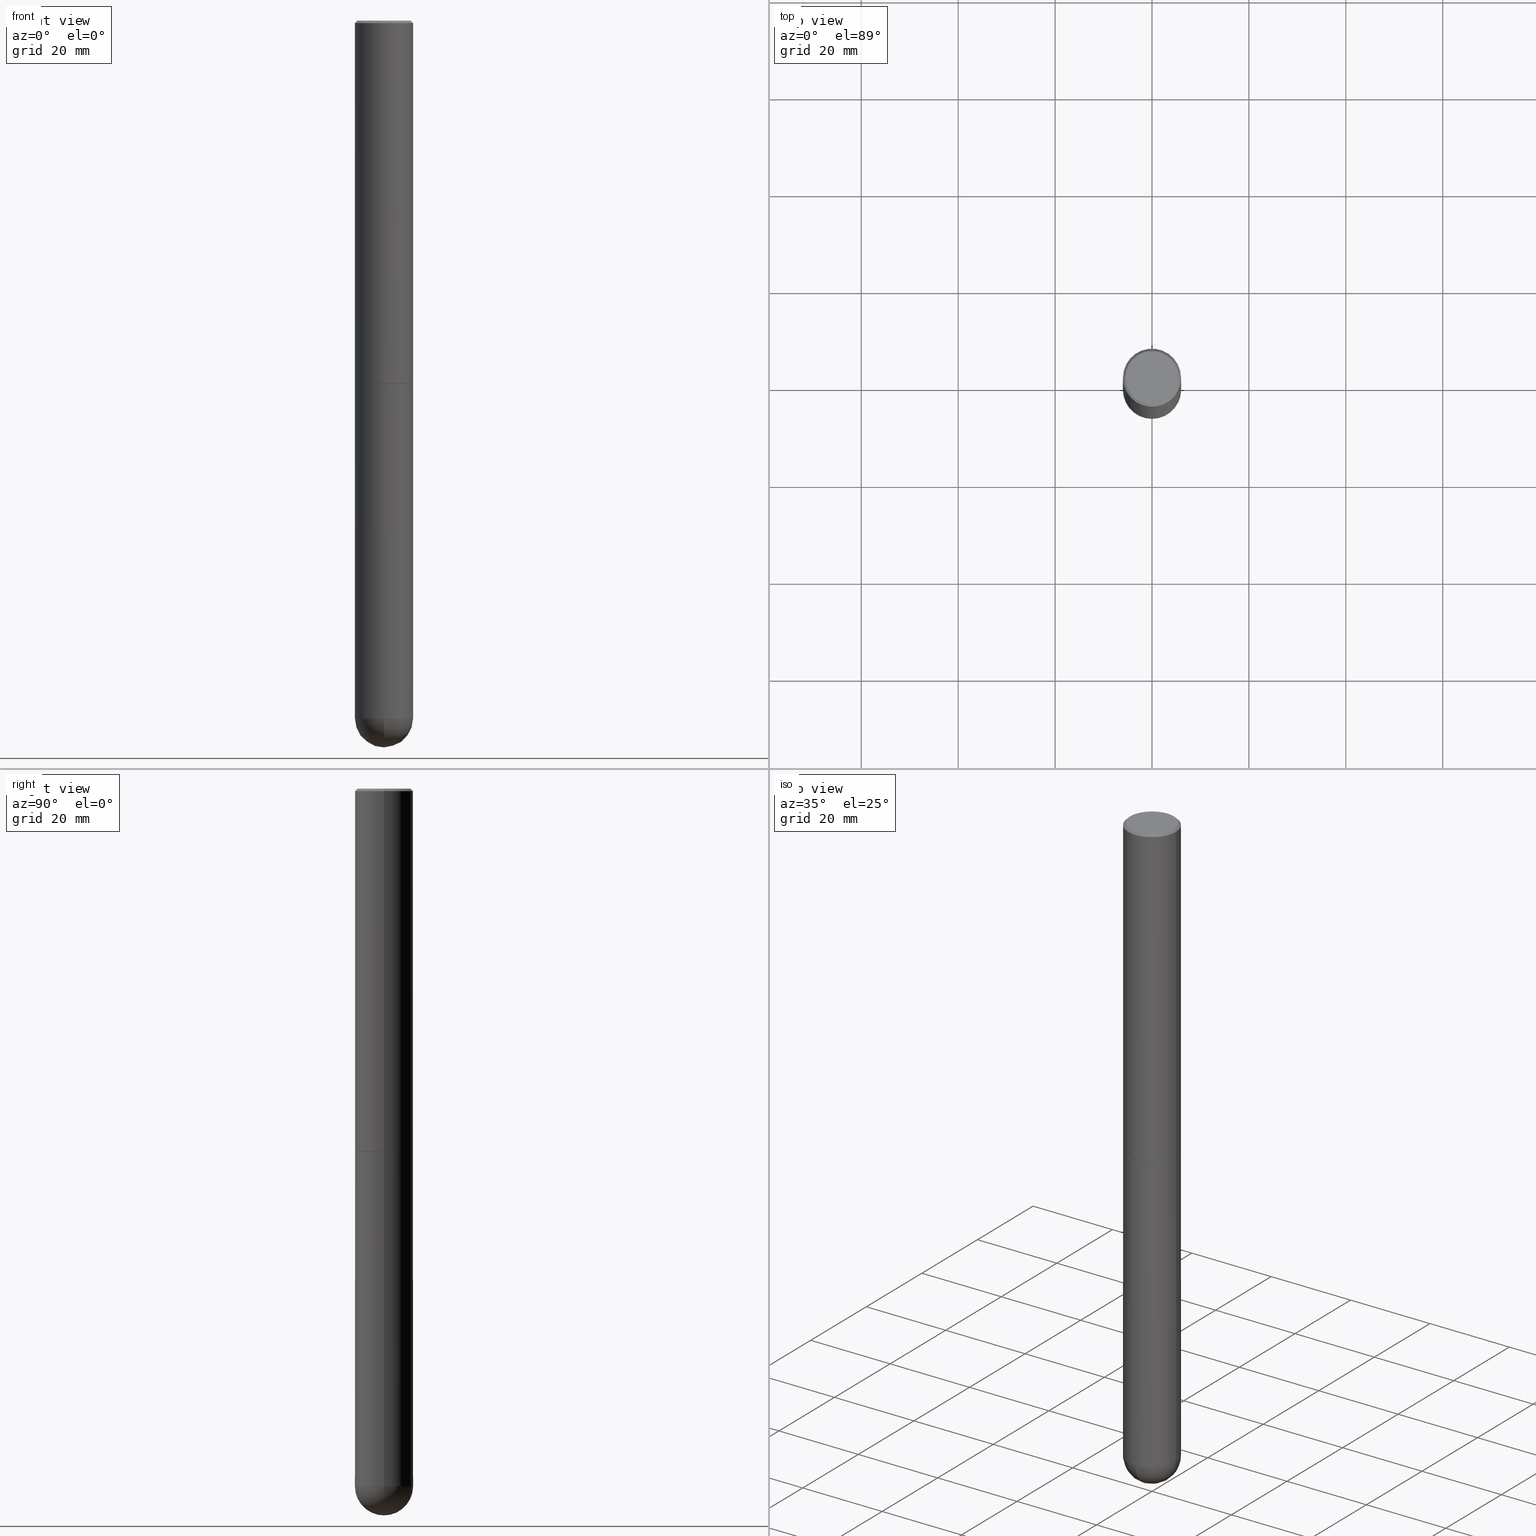
[diagram: canonical four-view strip — front | top / right | iso, engineering-drawing reading convention]
A machine part, canonical four-view strip (front | top / right | iso — engineering-drawing reading convention). The complete STEP part file that produces these views, byte-faithful:
ISO-10303-21;
HEADER;
FILE_DESCRIPTION (( 'STEP AP203' ),
    '1' );
FILE_NAME ('49603.STEP',
    '2024-04-10T12:29:52',
    ( '' ),
    ( '' ),
    'SwSTEP 2.0',
    'SolidWorks 2023',
    '' );
FILE_SCHEMA (( 'CONFIG_CONTROL_DESIGN' ));
ENDSEC;

DATA;
#1 = CC_DESIGN_PERSON_AND_ORGANIZATION_ASSIGNMENT ( #290, #282, ( #22 ) ) ;
#2 = VERTEX_POINT ( 'NONE', #254 ) ;
#3 = AXIS2_PLACEMENT_3D ( 'NONE', #136, #263, #313 ) ;
#4 = FACE_OUTER_BOUND ( 'NONE', #307, .T. ) ;
#5 = DIRECTION ( 'NONE',  ( -2.445468806185136597E-29, 3.491481338843145583E-15, 1.000000000000000000 ) ) ;
#6 = ORIENTED_EDGE ( 'NONE', *, *, #72, .F. ) ;
#7 = CARTESIAN_POINT ( 'NONE',  ( 1.353297652499150981E-28, -2.026843752244349558E-14, -5.669299999999999784 ) ) ;
#8 = DIRECTION ( 'NONE',  ( 2.438088387897960049E-29, -3.491481338843145188E-15, -1.000000000000000000 ) ) ;
#9 = CARTESIAN_POINT ( 'NONE',  ( 1.353297652499150981E-28, -2.026843752244349558E-14, -5.669299999999999784 ) ) ;
#10 = CARTESIAN_POINT ( 'NONE',  ( 0.2362000000000003264, -1.195518125233281169E-14, -2.951700000000000212 ) ) ;
#11 = ORIENTED_EDGE ( 'NONE', *, *, #112, .F. ) ;
#12 = ORIENTED_EDGE ( 'NONE', *, *, #366, .T. ) ;
#13 = DIRECTION ( 'NONE',  ( -1.000000000000000000, 7.105427357601001070E-15, -4.926315508542082329E-29 ) ) ;
#14 = CIRCLE ( 'NONE', #382, 0.2361999999999999933 ) ;
#15 = CARTESIAN_POINT ( 'NONE',  ( -0.2361999999999999933, 1.678301941865356591E-15, -1.161852468318208757E-29 ) ) ;
#16 = ORIENTED_EDGE ( 'NONE', *, *, #42, .T. ) ;
#17 = EDGE_CURVE ( 'NONE', #97, #104, #317, .T. ) ;
#18 = DIRECTION ( 'NONE',  ( -2.445468806185136597E-29, 3.491481338843145583E-15, 1.000000000000000000 ) ) ;
#19 = EDGE_LOOP ( 'NONE', ( #152, #25 ) ) ;
#20 = CARTESIAN_POINT ( 'NONE',  ( 0.000000000000000000, 0.000000000000000000, 0.000000000000000000 ) ) ;
#21 = CC_DESIGN_SECURITY_CLASSIFICATION ( #81, ( #22 ) ) ;
#22 = PRODUCT_DEFINITION_FORMATION_WITH_SPECIFIED_SOURCE ( 'ANY', '', #146, .NOT_KNOWN. ) ;
#23 = CALENDAR_DATE ( 2024, 10, 4 ) ;
#24 = DATE_AND_TIME ( #354, #365 ) ;
#25 = ORIENTED_EDGE ( 'NONE', *, *, #53, .T. ) ;
#26 = DATE_TIME_ROLE ( 'classification_date' ) ;
#27 = EDGE_LOOP ( 'NONE', ( #257, #231, #75, #253 ) ) ;
#28 = CIRCLE ( 'NONE', #342, 0.2362000000000002709 ) ;
#29 = EDGE_CURVE ( 'NONE', #148, #220, #126, .T. ) ;
#30 = PERSON_AND_ORGANIZATION ( #258, #260 ) ;
#31 = ADVANCED_FACE ( 'NONE', ( #386 ), #169, .T. ) ;
#32 = MECHANICAL_CONTEXT ( 'NONE', #217, 'mechanical' ) ;
#33 = ORIENTED_EDGE ( 'NONE', *, *, #296, .F. ) ;
#34 = DIRECTION ( 'NONE',  ( 0.7071067811867406405, -2.468850131084279700E-15, 0.7071067811863543939 ) ) ;
#35 = CARTESIAN_POINT ( 'NONE',  ( 0.2361999999999999933, -1.670115183622230141E-14, -5.669299999999999784 ) ) ;
#36 = AXIS2_PLACEMENT_3D ( 'NONE', #278, #272, #274 ) ;
#37 = DIRECTION ( 'NONE',  ( 1.000000000000000000, -6.982962677686268288E-15, 0.000000000000000000 ) ) ;
#38 = AXIS2_PLACEMENT_3D ( 'NONE', #49, #400, #147 ) ;
#39 = CARTESIAN_POINT ( 'NONE',  ( 1.412069577088764835E-28, -2.107866233598031943E-14, -5.905499999999999972 ) ) ;
#40 = FACE_OUTER_BOUND ( 'NONE', #293, .T. ) ;
#41 = DIRECTION ( 'NONE',  ( -2.438088387897960049E-29, 3.491481338843145188E-15, 1.000000000000000000 ) ) ;
#42 = EDGE_CURVE ( 'NONE', #188, #214, #302, .T. ) ;
#43 = CIRCLE ( 'NONE', #276, 0.2162000000000001421 ) ;
#44 = VECTOR ( 'NONE', #222, 39.37007874015748143 ) ;
#45 = DIRECTION ( 'NONE',  ( -1.000000000000000000, 6.982962677686265922E-15, -4.883557194083112901E-29 ) ) ;
#46 = EDGE_CURVE ( 'NONE', #220, #135, #310, .T. ) ;
#47 = LINE ( 'NONE', #109, #105 ) ;
#48 = ORIENTED_EDGE ( 'NONE', *, *, #366, .F. ) ;
#49 = CARTESIAN_POINT ( 'NONE',  ( 7.220735744022852519E-29, -1.030929694920215502E-14, -2.952700000000000102 ) ) ;
#50 = AXIS2_PLACEMENT_3D ( 'NONE', #7, #45, #166 ) ;
#51 = LINE ( 'NONE', #395, #322 ) ;
#52 = AXIS2_PLACEMENT_3D ( 'NONE', #163, #68, #193 ) ;
#53 = EDGE_CURVE ( 'NONE', #304, #371, #43, .T. ) ;
#54 = VERTEX_POINT ( 'NONE', #312 ) ;
#55 = CYLINDRICAL_SURFACE ( 'NONE', #249, 0.2362000000000001598 ) ;
#56 = DIRECTION ( 'NONE',  ( -0.7071067811865472397, 2.468850131082253905E-15, -0.7071067811865477948 ) ) ;
#57 = PERSON_AND_ORGANIZATION ( #258, #260 ) ;
#58 = ORIENTED_EDGE ( 'NONE', *, *, #296, .T. ) ;
#59 = CALENDAR_DATE ( 2024, 10, 4 ) ;
#60 = ORIENTED_EDGE ( 'NONE', *, *, #334, .T. ) ;
#61 = EDGE_CURVE ( 'NONE', #157, #2, #229, .T. ) ;
#62 = LOCAL_TIME ( 8, 29, 52.00000000000000000, #349 ) ;
#63 = APPLICATION_PROTOCOL_DEFINITION ( 'international standard', 'config_control_design', 1994, #226 ) ;
#64 = CARTESIAN_POINT ( 'NONE',  ( 7.220735744022852519E-29, -1.030929694920215502E-14, -2.952700000000000102 ) ) ;
#65 = ADVANCED_FACE ( 'NONE', ( #406 ), #244, .T. ) ;
#66 = DIRECTION ( 'NONE',  ( 0.7071067811865472397, -7.319954787623254468E-15, -0.7071067811865477948 ) ) ;
#67 = CARTESIAN_POINT ( 'NONE',  ( 7.220735744022852519E-29, -1.030929694920215502E-14, -2.952700000000000102 ) ) ;
#68 = DIRECTION ( 'NONE',  ( -2.445468806185136597E-29, 3.491481338843145583E-15, 1.000000000000000000 ) ) ;
#69 = ORIENTED_EDGE ( 'NONE', *, *, #172, .T. ) ;
#70 = MANIFOLD_SOLID_BREP ( 'Body-Move/Copy2[1]', #329 ) ;
#71 = DIRECTION ( 'NONE',  ( 1.000000000000000000, -6.982962677686265133E-15, 0.000000000000000000 ) ) ;
#72 = EDGE_CURVE ( 'NONE', #54, #148, #396, .T. ) ;
#73 = CARTESIAN_POINT ( 'NONE',  ( -0.2162000000000001421, 1.544631344304202170E-15, -1.835460370743283315E-16 ) ) ;
#74 = CC_DESIGN_APPROVAL ( #264, ( #81 ) ) ;
#75 = ORIENTED_EDGE ( 'NONE', *, *, #98, .F. ) ;
#76 = DIRECTION ( 'NONE',  ( -2.445468806185136597E-29, 3.491481338843145583E-15, 1.000000000000000000 ) ) ;
#77 = ORIENTED_EDGE ( 'NONE', *, *, #234, .F. ) ;
#78 = CARTESIAN_POINT ( 'NONE',  ( -0.2361999999999999933, -1.337347410988744218E-14, -2.952700000000000102 ) ) ;
#79 = LINE ( 'NONE', #15, #80 ) ;
#80 = VECTOR ( 'NONE', #364, 39.37007874015748143 ) ;
#81 = SECURITY_CLASSIFICATION ( '', '', #153 ) ;
#82 = EDGE_LOOP ( 'NONE', ( #77, #6 ) ) ;
#83 = DIRECTION ( 'NONE',  ( -2.445468806185136597E-29, 3.491481338843145583E-15, 1.000000000000000000 ) ) ;
#84 =( LENGTH_UNIT ( ) NAMED_UNIT ( * ) SI_UNIT ( $, .METRE. ) );
#85 = CARTESIAN_POINT ( 'NONE',  ( 0.000000000000000000, 0.000000000000000000, 0.000000000000000000 ) ) ;
#86 = VERTEX_POINT ( 'NONE', #39 ) ;
#87 = CONICAL_SURFACE ( 'NONE', #111, 0.2361999999999999933, 0.7853981633974479459 ) ;
#88 = APPROVAL_DATE_TIME ( #24, #149 ) ;
#89 = PERSON_AND_ORGANIZATION ( #258, #260 ) ;
#90 = CC_DESIGN_PERSON_AND_ORGANIZATION_ASSIGNMENT ( #284, #408, ( #81 ) ) ;
#91 = ORIENTED_EDGE ( 'NONE', *, *, #385, .F. ) ;
#92 = PERSON_AND_ORGANIZATION_ROLE ( 'design_owner' ) ;
#93 = CONICAL_SURFACE ( 'NONE', #192, 0.2361999999999999933, 0.7853981633974479459 ) ;
#94 = ADVANCED_FACE ( 'NONE', ( #40 ), #331, .T. ) ;
#95 = CARTESIAN_POINT ( 'NONE',  ( 4.890937612370285420E-31, -6.982962677686308865E-17, -0.02000000000000005246 ) ) ;
#96 = LINE ( 'NONE', #357, #44 ) ;
#97 = VERTEX_POINT ( 'NONE', #335 ) ;
#98 = EDGE_CURVE ( 'NONE', #214, #188, #117, .T. ) ;
#99 = DIRECTION ( 'NONE',  ( -2.445468806185136597E-29, 3.491481338843145583E-15, 1.000000000000000000 ) ) ;
#100 = PLANE ( 'NONE',  #205 ) ;
#101 = CC_DESIGN_DATE_AND_TIME_ASSIGNMENT ( #291, #116, ( #162 ) ) ;
#102 = CARTESIAN_POINT ( 'NONE',  ( 4.488561081641443999E-45, -6.408475632635922003E-31, -1.835460370743176573E-16 ) ) ;
#103 = CARTESIAN_POINT ( 'NONE',  ( 0.000000000000000000, 0.000000000000000000, 0.000000000000000000 ) ) ;
#104 = VERTEX_POINT ( 'NONE', #356 ) ;
#105 = VECTOR ( 'NONE', #309, 39.37007874015748143 ) ;
#106 = CARTESIAN_POINT ( 'NONE',  ( 4.890937612370285420E-31, -6.982962677686308865E-17, -0.02000000000000005246 ) ) ;
#107 = LINE ( 'NONE', #203, #224 ) ;
#108 = ORIENTED_EDGE ( 'NONE', *, *, #98, .T. ) ;
#109 = CARTESIAN_POINT ( 'NONE',  ( -0.2362000000000001598, 1.678301941865357775E-15, -1.161852468318209598E-29 ) ) ;
#110 = DIRECTION ( 'NONE',  ( -2.445468806185136877E-29, 3.491481338843145188E-15, 1.000000000000000000 ) ) ;
#111 = AXIS2_PLACEMENT_3D ( 'NONE', #344, #179, #341 ) ;
#112 = EDGE_CURVE ( 'NONE', #304, #214, #167, .T. ) ;
#113 = DATE_AND_TIME ( #59, #132 ) ;
#114 = ADVANCED_FACE ( 'NONE', ( #230 ), #387, .T. ) ;
#115 = COORDINATED_UNIVERSAL_TIME_OFFSET ( 5, 0, .BEHIND. ) ;
#116 = DATE_TIME_ROLE ( 'creation_date' ) ;
#117 = CIRCLE ( 'NONE', #359, 0.2361999999999999933 ) ;
#118 = CIRCLE ( 'NONE', #176, 0.2362000000000002709 ) ;
#119 = ADVANCED_FACE ( 'NONE', ( #388 ), #100, .F. ) ;
#120 = APPROVAL_ROLE ( '' ) ;
#121 = DIRECTION ( 'NONE',  ( -1.000000000000000000, 6.982962677686265922E-15, -4.883557194083112901E-29 ) ) ;
#122 = APPROVAL_DATE_TIME ( #151, #289 ) ;
#123 = ORIENTED_EDGE ( 'NONE', *, *, #334, .F. ) ;
#124 = VECTOR ( 'NONE', #281, 39.37007874015748143 ) ;
#125 = CIRCLE ( 'NONE', #285, 0.2361999999999999933 ) ;
#126 = LINE ( 'NONE', #381, #241 ) ;
#127 = DIRECTION ( 'NONE',  ( -1.000000000000000000, 6.982962677686265922E-15, -4.876176775795935793E-29 ) ) ;
#128 = DIRECTION ( 'NONE',  ( 1.000000000000000000, -6.982962677686265922E-15, 4.876176775795935793E-29 ) ) ;
#129 = ORIENTED_EDGE ( 'NONE', *, *, #17, .F. ) ;
#130 = DIRECTION ( 'NONE',  ( -2.445468806185136597E-29, 3.491481338843145583E-15, 1.000000000000000000 ) ) ;
#131 = AXIS2_PLACEMENT_3D ( 'NONE', #85, #245, #211 ) ;
#132 = LOCAL_TIME ( 8, 29, 52.00000000000000000, #376 ) ;
#133 = ADVANCED_FACE ( 'NONE', ( #390 ), #191, .F. ) ;
#134 = CARTESIAN_POINT ( 'NONE',  ( 0.2361999999999999933, -1.690279253850498771E-15, -0.02000000000000005246 ) ) ;
#135 = VERTEX_POINT ( 'NONE', #297 ) ;
#136 = CARTESIAN_POINT ( 'NONE',  ( 7.220735744022852519E-29, -1.030929694920215502E-14, -2.952700000000000102 ) ) ;
#137 = ORIENTED_EDGE ( 'NONE', *, *, #305, .T. ) ;
#138 = DIRECTION ( 'NONE',  ( -7.105427357601001070E-15, -1.000000000000000000, 0.000000000000000000 ) ) ;
#139 = EDGE_CURVE ( 'NONE', #292, #2, #125, .T. ) ;
#140 = EDGE_LOOP ( 'NONE', ( #11, #91, #283, #16 ) ) ;
#141 = AXIS2_PLACEMENT_3D ( 'NONE', #9, #121, #392 ) ;
#142 = CIRCLE ( 'NONE', #336, 0.2361999999999999933 ) ;
#143 = DIRECTION ( 'NONE',  ( -2.445468806185136597E-29, 3.491481338843145583E-15, 1.000000000000000000 ) ) ;
#144 = ORIENTED_EDGE ( 'NONE', *, *, #219, .T. ) ;
#145 = CARTESIAN_POINT ( 'NONE',  ( 0.000000000000000000, 0.000000000000000000, 0.000000000000000000 ) ) ;
#146 = PRODUCT ( '49603', '49603', '', ( #32 ) ) ;
#147 = DIRECTION ( 'NONE',  ( 1.000000000000000000, -6.982962677686268288E-15, 0.000000000000000000 ) ) ;
#148 = VERTEX_POINT ( 'NONE', #221 ) ;
#149 = APPROVAL ( #350, 'UNSPECIFIED' ) ;
#150 = DIRECTION ( 'NONE',  ( -2.445468806185136597E-29, 3.491481338843145583E-15, 1.000000000000000000 ) ) ;
#151 = DATE_AND_TIME ( #23, #62 ) ;
#152 = ORIENTED_EDGE ( 'NONE', *, *, #385, .T. ) ;
#153 = SECURITY_CLASSIFICATION_LEVEL ( 'unclassified' ) ;
#154 = PERSON_AND_ORGANIZATION ( #258, #260 ) ;
#155 = CLOSED_SHELL ( 'NONE', ( #373, #332, #315, #280, #94, #31, #119, #207 ) ) ;
#156 = AXIS2_PLACEMENT_3D ( 'NONE', #314, #340, #232 ) ;
#157 = VERTEX_POINT ( 'NONE', #35 ) ;
#158 = EDGE_CURVE ( 'NONE', #54, #135, #96, .T. ) ;
#159 = ORIENTED_EDGE ( 'NONE', *, *, #158, .F. ) ;
#160 = CARTESIAN_POINT ( 'NONE',  ( 1.386409630290539494E-28, -1.979425515430344370E-14, -5.669299999999999784 ) ) ;
#161 = EDGE_LOOP ( 'NONE', ( #202, #190, #180, #403 ) ) ;
#162 = PRODUCT_DEFINITION ( 'UNKNOWN', '', #22, #299 ) ;
#163 = CARTESIAN_POINT ( 'NONE',  ( 1.386409630290539494E-28, -1.979425515430344370E-14, -5.669299999999999784 ) ) ;
#164 = AXIS2_PLACEMENT_3D ( 'NONE', #243, #83, #209 ) ;
#165 = AXIS2_PLACEMENT_3D ( 'NONE', #20, #76, #279 ) ;
#166 = DIRECTION ( 'NONE',  ( 6.982962677686265922E-15, 1.000000000000000000, -4.626330217890364603E-15 ) ) ;
#167 = LINE ( 'NONE', #134, #223 ) ;
#168 = CARTESIAN_POINT ( 'NONE',  ( 1.509716530915771704E-15, 0.2162000000000001421, -8.466312839950473922E-16 ) ) ;
#169 = CONICAL_SURFACE ( 'NONE', #218, 0.2351999999999999924, 0.7853981633977213939 ) ;
#170 = CIRCLE ( 'NONE', #52, 0.2361999999999999933 ) ;
#171 = PLANE ( 'NONE',  #410 ) ;
#172 = EDGE_CURVE ( 'NONE', #157, #97, #170, .T. ) ;
#173 = CARTESIAN_POINT ( 'NONE',  ( 4.488561081641443999E-45, -6.408475632635922003E-31, -1.835460370743176573E-16 ) ) ;
#174 = FACE_OUTER_BOUND ( 'NONE', #161, .T. ) ;
#175 = AXIS2_PLACEMENT_3D ( 'NONE', #103, #256, #391 ) ;
#176 = AXIS2_PLACEMENT_3D ( 'NONE', #240, #13, #138 ) ;
#177 = FACE_OUTER_BOUND ( 'NONE', #27, .T. ) ;
#178 = ORIENTED_EDGE ( 'NONE', *, *, #61, .T. ) ;
#179 = DIRECTION ( 'NONE',  ( 2.445468806185136597E-29, -3.491481338843145583E-15, -1.000000000000000000 ) ) ;
#180 = ORIENTED_EDGE ( 'NONE', *, *, #46, .F. ) ;
#181 = CC_DESIGN_PERSON_AND_ORGANIZATION_ASSIGNMENT ( #324, #321, ( #162 ) ) ;
#182 = FACE_OUTER_BOUND ( 'NONE', #140, .T. ) ;
#183 = AXIS2_PLACEMENT_3D ( 'NONE', #300, #99, #227 ) ;
#184 = APPROVAL_DATE_TIME ( #352, #264 ) ;
#185 = ORIENTED_EDGE ( 'NONE', *, *, #17, .T. ) ;
#186 =( NAMED_UNIT ( * ) SI_UNIT ( $, .STERADIAN. ) SOLID_ANGLE_UNIT ( ) );
#187 = CC_DESIGN_PERSON_AND_ORGANIZATION_ASSIGNMENT ( #89, #412, ( #22 ) ) ;
#188 = VERTEX_POINT ( 'NONE', #295 ) ;
#189 = DIRECTION ( 'NONE',  ( 1.000000000000000000, -6.982962677686268288E-15, 0.000000000000000000 ) ) ;
#190 = ORIENTED_EDGE ( 'NONE', *, *, #158, .T. ) ;
#191 = PLANE ( 'NONE',  #353 ) ;
#192 = AXIS2_PLACEMENT_3D ( 'NONE', #106, #369, #316 ) ;
#193 = DIRECTION ( 'NONE',  ( 1.000000000000000000, -6.982962677686273021E-15, 0.000000000000000000 ) ) ;
#194 = ADVANCED_FACE ( 'NONE', ( #4 ), #197, .T. ) ;
#195 = FACE_OUTER_BOUND ( 'NONE', #19, .T. ) ;
#196 = ORIENTED_EDGE ( 'NONE', *, *, #72, .T. ) ;
#197 = CYLINDRICAL_SURFACE ( 'NONE', #183, 0.2361999999999999933 ) ;
#198 = LOCAL_TIME ( 8, 29, 52.00000000000000000, #379 ) ;
#199 = DIRECTION ( 'NONE',  ( 1.000000000000000000, -6.982962677686266711E-15, 4.876176775795936353E-29 ) ) ;
#200 = ORIENTED_EDGE ( 'NONE', *, *, #305, .F. ) ;
#201 = CARTESIAN_POINT ( 'NONE',  ( 0.2162000000000001421, -1.586759460484352974E-15, -1.835460370743068351E-16 ) ) ;
#202 = ORIENTED_EDGE ( 'NONE', *, *, #234, .T. ) ;
#203 = CARTESIAN_POINT ( 'NONE',  ( 0.2362000000000001598, -1.649375784469497314E-15, 1.151752954443000929E-29 ) ) ;
#204 = ORIENTED_EDGE ( 'NONE', *, *, #394, .F. ) ;
#205 = AXIS2_PLACEMENT_3D ( 'NONE', #64, #41, #128 ) ;
#206 = CARTESIAN_POINT ( 'NONE',  ( 1.353297652499150981E-28, -2.026843752244349558E-14, -5.669299999999999784 ) ) ;
#207 = ADVANCED_FACE ( 'NONE', ( #195 ), #171, .F. ) ;
#208 = ORIENTED_EDGE ( 'NONE', *, *, #53, .F. ) ;
#209 = DIRECTION ( 'NONE',  ( 1.000000000000000000, -6.982962677686263555E-15, 0.000000000000000000 ) ) ;
#210 = DIRECTION ( 'NONE',  ( 1.000000000000000000, -6.982962677686273021E-15, 0.000000000000000000 ) ) ;
#211 = DIRECTION ( 'NONE',  ( 1.000000000000000000, 0.000000000000000000, 0.000000000000000000 ) ) ;
#212 = PERSON_AND_ORGANIZATION ( #258, #260 ) ;
#213 = DIRECTION ( 'NONE',  ( -2.445468806185136597E-29, 3.491481338843145583E-15, 1.000000000000000000 ) ) ;
#214 = VERTEX_POINT ( 'NONE', #301 ) ;
#215 = DIRECTION ( 'NONE',  ( 1.000000000000000000, -6.982962677686273021E-15, 0.000000000000000000 ) ) ;
#216 = APPLICATION_PROTOCOL_DEFINITION ( 'international standard', 'config_control_design', 1994, #217 ) ;
#217 = APPLICATION_CONTEXT ( 'configuration controlled 3d designs of mechanical parts and assemblies' ) ;
#218 = AXIS2_PLACEMENT_3D ( 'NONE', #355, #294, #37 ) ;
#219 = EDGE_CURVE ( 'NONE', #2, #292, #14, .T. ) ;
#220 = VERTEX_POINT ( 'NONE', #10 ) ;
#221 = CARTESIAN_POINT ( 'NONE',  ( 0.2351999999999999924, -1.195168977099396553E-14, -2.952700000000000102 ) ) ;
#222 = DIRECTION ( 'NONE',  ( -0.7071067811867406405, 7.493145998871051513E-15, 0.7071067811863543939 ) ) ;
#223 = VECTOR ( 'NONE', #66, 39.37007874015748143 ) ;
#224 = VECTOR ( 'NONE', #110, 39.37007874015748143 ) ;
#225 = ORIENTED_EDGE ( 'NONE', *, *, #139, .T. ) ;
#226 = APPLICATION_CONTEXT ( 'configuration controlled 3d designs of mechanical parts and assemblies' ) ;
#227 = DIRECTION ( 'NONE',  ( 1.000000000000000000, -6.982962677686266711E-15, 4.876176775795936353E-29 ) ) ;
#228 = ORIENTED_EDGE ( 'NONE', *, *, #394, .T. ) ;
#229 = LINE ( 'NONE', #367, #124 ) ;
#230 = FACE_OUTER_BOUND ( 'NONE', #287, .T. ) ;
#231 = ORIENTED_EDGE ( 'NONE', *, *, #380, .T. ) ;
#232 = DIRECTION ( 'NONE',  ( 1.000000000000000000, -6.982962677686273021E-15, 0.000000000000000000 ) ) ;
#233 = ORIENTED_EDGE ( 'NONE', *, *, #252, .F. ) ;
#234 = EDGE_CURVE ( 'NONE', #148, #54, #348, .T. ) ;
#235 = CONICAL_SURFACE ( 'NONE', #38, 0.2351999999999999924, 0.7853981633977213939 ) ;
#236 = DIRECTION ( 'NONE',  ( 1.000000000000000000, -6.982962677686266711E-15, 4.881916136609858652E-29 ) ) ;
#237 = DIRECTION ( 'NONE',  ( -2.445468806185136597E-29, 3.491481338843145583E-15, 1.000000000000000000 ) ) ;
#238 = ORIENTED_EDGE ( 'NONE', *, *, #407, .T. ) ;
#239 =( CONVERSION_BASED_UNIT ( 'INCH', #269 ) LENGTH_UNIT ( ) NAMED_UNIT ( #339 ) );
#240 = CARTESIAN_POINT ( 'NONE',  ( 1.353297652499150981E-28, -2.026843752244349558E-14, -5.669299999999999784 ) ) ;
#241 = VECTOR ( 'NONE', #34, 39.37007874015748143 ) ;
#242 = APPROVAL_PERSON_ORGANIZATION ( #30, #289, #120 ) ;
#243 = CARTESIAN_POINT ( 'NONE',  ( 7.218290275216666916E-29, -1.030580546786331359E-14, -2.951700000000000212 ) ) ;
#244 = SPHERICAL_SURFACE ( 'NONE', #141, 0.2362000000000002709 ) ;
#245 = DIRECTION ( 'NONE',  ( 0.000000000000000000, 0.000000000000000000, 1.000000000000000000 ) ) ;
#246 = PRODUCT_DEFINITION_SHAPE ( 'NONE', 'NONE',  #162 ) ;
#247 =( NAMED_UNIT ( * ) PLANE_ANGLE_UNIT ( ) SI_UNIT ( $, .RADIAN. ) );
#248 = EDGE_LOOP ( 'NONE', ( #204, #137, #298, #33 ) ) ;
#249 = AXIS2_PLACEMENT_3D ( 'NONE', #145, #237, #199 ) ;
#250 = CALENDAR_DATE ( 2024, 10, 4 ) ;
#251 = COORDINATED_UNIVERSAL_TIME_OFFSET ( 5, 0, .BEHIND. ) ;
#252 = EDGE_CURVE ( 'NONE', #104, #292, #79, .T. ) ;
#253 = ORIENTED_EDGE ( 'NONE', *, *, #407, .F. ) ;
#254 = CARTESIAN_POINT ( 'NONE',  ( 0.2361999999999999933, -1.195867273367164996E-14, -2.952700000000000102 ) ) ;
#255 = CARTESIAN_POINT ( 'NONE',  ( 7.220735744022852519E-29, -1.030929694920215502E-14, -2.952700000000000102 ) ) ;
#256 = DIRECTION ( 'NONE',  ( -2.445468806185136597E-29, 3.491481338843145583E-15, 1.000000000000000000 ) ) ;
#257 = ORIENTED_EDGE ( 'NONE', *, *, #46, .T. ) ;
#258 = PERSON ( 'UNSPECIFIED', 'UNSPECIFIED', 'UNSPECIFIED', ('UNSPECIFIED'), ('UNSPECIFIED'), ('UNSPECIFIED') ) ;
#259 = CARTESIAN_POINT ( 'NONE',  ( 1.649375784469568312E-15, 0.2361999999999896960, -2.952700000000000990 ) ) ;
#260 = ORGANIZATION ( 'UNSPECIFIED', 'UNSPECIFIED', '' ) ;
#261 = DIRECTION ( 'NONE',  ( -2.445468806185136597E-29, 3.491481338843145583E-15, 1.000000000000000000 ) ) ;
#262 = EDGE_LOOP ( 'NONE', ( #159, #196, #377, #48 ) ) ;
#263 = DIRECTION ( 'NONE',  ( -2.445468806185136597E-29, 3.491481338843145583E-15, 1.000000000000000000 ) ) ;
#264 = APPROVAL ( #286, 'UNSPECIFIED' ) ;
#265 = FACE_OUTER_BOUND ( 'NONE', #266, .T. ) ;
#266 = EDGE_LOOP ( 'NONE', ( #185, #270, #398, #327, #69 ) ) ;
#267 = AXIS2_PLACEMENT_3D ( 'NONE', #173, #143, #402 ) ;
#268 = DIRECTION ( 'NONE',  ( -2.445468806185136597E-29, 3.491481338843145583E-15, 1.000000000000000000 ) ) ;
#269 = LENGTH_MEASURE_WITH_UNIT ( LENGTH_MEASURE( 0.02539999999999999897 ), #84 );
#270 = ORIENTED_EDGE ( 'NONE', *, *, #252, .T. ) ;
#271 = ADVANCED_FACE ( 'NONE', ( #265 ), #368, .T. ) ;
#272 = DIRECTION ( 'NONE',  ( -2.445468806185136597E-29, 3.491481338843145583E-15, 1.000000000000000000 ) ) ;
#273 = CARTESIAN_POINT ( 'NONE',  ( 7.218290275216666916E-29, -1.030580546786331359E-14, -2.951700000000000212 ) ) ;
#274 = DIRECTION ( 'NONE',  ( 1.000000000000000000, -6.982962677686266711E-15, 0.000000000000000000 ) ) ;
#275 = CARTESIAN_POINT ( 'NONE',  ( 1.386409630290539494E-28, -1.979425515430344370E-14, -5.669299999999999784 ) ) ;
#276 = AXIS2_PLACEMENT_3D ( 'NONE', #102, #268, #236 ) ;
#277 = CIRCLE ( 'NONE', #267, 0.2162000000000001421 ) ;
#278 = CARTESIAN_POINT ( 'NONE',  ( 4.890937612370285420E-31, -6.982962677686308865E-17, -0.02000000000000005246 ) ) ;
#279 = DIRECTION ( 'NONE',  ( 1.000000000000000000, -6.982962677686266711E-15, 4.876176775795936353E-29 ) ) ;
#280 = ADVANCED_FACE ( 'NONE', ( #182 ), #93, .T. ) ;
#281 = DIRECTION ( 'NONE',  ( -2.445468806185136877E-29, 3.491481338843145188E-15, 1.000000000000000000 ) ) ;
#282 = PERSON_AND_ORGANIZATION_ROLE ( 'creator' ) ;
#283 = ORIENTED_EDGE ( 'NONE', *, *, #319, .T. ) ;
#284 = PERSON_AND_ORGANIZATION ( #258, #260 ) ;
#285 = AXIS2_PLACEMENT_3D ( 'NONE', #361, #5, #71 ) ;
#286 = APPROVAL_STATUS ( 'not_yet_approved' ) ;
#287 = EDGE_LOOP ( 'NONE', ( #200, #228, #123, #129 ) ) ;
#288 = APPROVAL_PERSON_ORGANIZATION ( #154, #264, #411 ) ;
#289 = APPROVAL ( #347, 'UNSPECIFIED' ) ;
#290 = PERSON_AND_ORGANIZATION ( #258, #260 ) ;
#291 = DATE_AND_TIME ( #250, #198 ) ;
#292 = VERTEX_POINT ( 'NONE', #78 ) ;
#293 = EDGE_LOOP ( 'NONE', ( #393, #12, #238, #325 ) ) ;
#294 = DIRECTION ( 'NONE',  ( -2.445468806185136597E-29, 3.491481338843145583E-15, 1.000000000000000000 ) ) ;
#295 = CARTESIAN_POINT ( 'NONE',  ( -0.2361999999999999933, 1.579546157692633030E-15, -0.02000000000000005246 ) ) ;
#296 = EDGE_CURVE ( 'NONE', #409, #157, #142, .T. ) ;
#297 = CARTESIAN_POINT ( 'NONE',  ( -0.2362000000000003264, -3.509515605454725737E-15, -2.951700000000000212 ) ) ;
#298 = ORIENTED_EDGE ( 'NONE', *, *, #172, .F. ) ;
#299 = DESIGN_CONTEXT ( 'detailed design', #226, 'design' ) ;
#300 = CARTESIAN_POINT ( 'NONE',  ( 0.000000000000000000, 0.000000000000000000, 0.000000000000000000 ) ) ;
#301 = CARTESIAN_POINT ( 'NONE',  ( 0.2361999999999999933, -1.690279253850498771E-15, -0.02000000000000005246 ) ) ;
#302 = CIRCLE ( 'NONE', #36, 0.2361999999999999933 ) ;
#303 = CC_DESIGN_APPROVAL ( #289, ( #162 ) ) ;
#304 = VERTEX_POINT ( 'NONE', #201 ) ;
#305 = EDGE_CURVE ( 'NONE', #86, #97, #28, .T. ) ;
#306 = DIRECTION ( 'NONE',  ( 1.000000000000000000, -6.982962677686265133E-15, 0.000000000000000000 ) ) ;
#307 = EDGE_LOOP ( 'NONE', ( #233, #60, #58, #178, #330 ) ) ;
#308 = ORIENTED_EDGE ( 'NONE', *, *, #319, .F. ) ;
#309 = DIRECTION ( 'NONE',  ( -2.445468806185136877E-29, 3.491481338843145188E-15, 1.000000000000000000 ) ) ;
#310 = CIRCLE ( 'NONE', #164, 0.2362000000000003264 ) ;
#311 = CIRCLE ( 'NONE', #156, 0.2361999999999999933 ) ;
#312 = CARTESIAN_POINT ( 'NONE',  ( -0.2351999999999999924, -8.632801980346176439E-15, -2.952700000000000102 ) ) ;
#313 = DIRECTION ( 'NONE',  ( 1.000000000000000000, -6.982962677686268288E-15, 0.000000000000000000 ) ) ;
#314 = CARTESIAN_POINT ( 'NONE',  ( 1.386409630290539494E-28, -1.979425515430344370E-14, -5.669299999999999784 ) ) ;
#315 = ADVANCED_FACE ( 'NONE', ( #343 ), #87, .T. ) ;
#316 = DIRECTION ( 'NONE',  ( -1.000000000000000000, 6.982962677686266711E-15, 0.000000000000000000 ) ) ;
#317 = CIRCLE ( 'NONE', #370, 0.2361999999999999933 ) ;
#318 = APPROVAL_PERSON_ORGANIZATION ( #57, #149, #320 ) ;
#319 = EDGE_CURVE ( 'NONE', #371, #188, #51, .T. ) ;
#320 = APPROVAL_ROLE ( '' ) ;
#321 = PERSON_AND_ORGANIZATION_ROLE ( 'creator' ) ;
#322 = VECTOR ( 'NONE', #56, 39.37007874015748143 ) ;
#323 = SHAPE_DEFINITION_REPRESENTATION ( #246, #358 ) ;
#324 = PERSON_AND_ORGANIZATION ( #258, #260 ) ;
#325 = ORIENTED_EDGE ( 'NONE', *, *, #42, .F. ) ;
#326 = DIRECTION ( 'NONE',  ( 2.438088387897960049E-29, -3.491481338843145188E-15, -1.000000000000000000 ) ) ;
#327 = ORIENTED_EDGE ( 'NONE', *, *, #61, .F. ) ;
#328 = UNCERTAINTY_MEASURE_WITH_UNIT (LENGTH_MEASURE( 1.000000000000000082E-05 ), #239, 'distance_accuracy_value', 'NONE');
#329 = CLOSED_SHELL ( 'NONE', ( #271, #114, #65, #133, #194 ) ) ;
#330 = ORIENTED_EDGE ( 'NONE', *, *, #139, .F. ) ;
#331 = CYLINDRICAL_SURFACE ( 'NONE', #175, 0.2362000000000001598 ) ;
#332 = ADVANCED_FACE ( 'NONE', ( #177 ), #55, .T. ) ;
#333 = DIRECTION ( 'NONE',  ( 1.000000000000000000, -6.982962677686266711E-15, 0.000000000000000000 ) ) ;
#334 = EDGE_CURVE ( 'NONE', #104, #409, #311, .T. ) ;
#335 = CARTESIAN_POINT ( 'NONE',  ( 1.649375784469633984E-15, 0.2361999999999800925, -5.669300000000000672 ) ) ;
#336 = AXIS2_PLACEMENT_3D ( 'NONE', #275, #150, #210 ) ;
#337 = CC_DESIGN_APPROVAL ( #149, ( #22 ) ) ;
#338 = DIRECTION ( 'NONE',  ( 1.000000000000000000, -6.982962677686263555E-15, 0.000000000000000000 ) ) ;
#339 = DIMENSIONAL_EXPONENTS ( 1.000000000000000000, 0.000000000000000000, 0.000000000000000000, 0.000000000000000000, 0.000000000000000000, 0.000000000000000000, 0.000000000000000000 ) ;
#340 = DIRECTION ( 'NONE',  ( -2.445468806185136597E-29, 3.491481338843145583E-15, 1.000000000000000000 ) ) ;
#341 = DIRECTION ( 'NONE',  ( -1.000000000000000000, 6.982962677686266711E-15, 0.000000000000000000 ) ) ;
#342 = AXIS2_PLACEMENT_3D ( 'NONE', #206, #399, #405 ) ;
#343 = FACE_OUTER_BOUND ( 'NONE', #384, .T. ) ;
#344 = CARTESIAN_POINT ( 'NONE',  ( 4.890937612370285420E-31, -6.982962677686308865E-17, -0.02000000000000005246 ) ) ;
#345 = ORIENTED_EDGE ( 'NONE', *, *, #112, .T. ) ;
#346 = CC_DESIGN_DATE_AND_TIME_ASSIGNMENT ( #113, #26, ( #81 ) ) ;
#347 = APPROVAL_STATUS ( 'not_yet_approved' ) ;
#348 = CIRCLE ( 'NONE', #3, 0.2351999999999999924 ) ;
#349 = COORDINATED_UNIVERSAL_TIME_OFFSET ( 5, 0, .BEHIND. ) ;
#350 = APPROVAL_STATUS ( 'not_yet_approved' ) ;
#351 = MANIFOLD_SOLID_BREP ( 'Body-Move/Copy2[2]', #155 ) ;
#352 = DATE_AND_TIME ( #378, #404 ) ;
#353 = AXIS2_PLACEMENT_3D ( 'NONE', #259, #326, #363 ) ;
#354 = CALENDAR_DATE ( 2024, 10, 4 ) ;
#355 = CARTESIAN_POINT ( 'NONE',  ( 7.220735744022852519E-29, -1.030929694920215502E-14, -2.952700000000000102 ) ) ;
#356 = CARTESIAN_POINT ( 'NONE',  ( -0.2361999999999999933, -1.337347410988744691E-14, -5.669299999999999784 ) ) ;
#357 = CARTESIAN_POINT ( 'NONE',  ( -0.2351999999999999924, -8.638100434694398841E-15, -2.952700000000000102 ) ) ;
#358 = ADVANCED_BREP_SHAPE_REPRESENTATION ( '49603', ( #70, #351, #131 ), #389 ) ;
#359 = AXIS2_PLACEMENT_3D ( 'NONE', #95, #130, #333 ) ;
#360 = DIRECTION ( 'NONE',  ( -2.445468806185136597E-29, 3.491481338843145583E-15, 1.000000000000000000 ) ) ;
#361 = CARTESIAN_POINT ( 'NONE',  ( 7.220735744022852519E-29, -1.030929694920215502E-14, -2.952700000000000102 ) ) ;
#362 = PRODUCT_RELATED_PRODUCT_CATEGORY ( 'detail', '', ( #146 ) ) ;
#363 = DIRECTION ( 'NONE',  ( -1.000000000000000000, 6.982962677686265922E-15, -4.876176775795935793E-29 ) ) ;
#364 = DIRECTION ( 'NONE',  ( -2.445468806185136877E-29, 3.491481338843145188E-15, 1.000000000000000000 ) ) ;
#365 = LOCAL_TIME ( 8, 29, 52.00000000000000000, #115 ) ;
#366 = EDGE_CURVE ( 'NONE', #135, #220, #397, .T. ) ;
#367 = CARTESIAN_POINT ( 'NONE',  ( 0.2361999999999999933, -1.649375784469496131E-15, 1.151752954443000088E-29 ) ) ;
#368 = CYLINDRICAL_SURFACE ( 'NONE', #165, 0.2361999999999999933 ) ;
#369 = DIRECTION ( 'NONE',  ( 2.445468806185136597E-29, -3.491481338843145583E-15, -1.000000000000000000 ) ) ;
#370 = AXIS2_PLACEMENT_3D ( 'NONE', #160, #213, #215 ) ;
#371 = VERTEX_POINT ( 'NONE', #73 ) ;
#372 = CARTESIAN_POINT ( 'NONE',  ( -1.678301941865220316E-15, -0.2362000000000201716, -5.669299999999998896 ) ) ;
#373 = ADVANCED_FACE ( 'NONE', ( #174 ), #235, .T. ) ;
#374 = AXIS2_PLACEMENT_3D ( 'NONE', #67, #360, #189 ) ;
#375 = AXIS2_PLACEMENT_3D ( 'NONE', #273, #18, #338 ) ;
#376 = COORDINATED_UNIVERSAL_TIME_OFFSET ( 5, 0, .BEHIND. ) ;
#377 = ORIENTED_EDGE ( 'NONE', *, *, #29, .T. ) ;
#378 = CALENDAR_DATE ( 2024, 10, 4 ) ;
#379 = COORDINATED_UNIVERSAL_TIME_OFFSET ( 5, 0, .BEHIND. ) ;
#380 = EDGE_CURVE ( 'NONE', #135, #188, #47, .T. ) ;
#381 = CARTESIAN_POINT ( 'NONE',  ( 0.2351999999999999924, -1.195168977099396553E-14, -2.952700000000000102 ) ) ;
#382 = AXIS2_PLACEMENT_3D ( 'NONE', #255, #261, #306 ) ;
#383 = EDGE_LOOP ( 'NONE', ( #144, #225 ) ) ;
#384 = EDGE_LOOP ( 'NONE', ( #208, #345, #108, #308 ) ) ;
#385 = EDGE_CURVE ( 'NONE', #371, #304, #277, .T. ) ;
#386 = FACE_OUTER_BOUND ( 'NONE', #262, .T. ) ;
#387 = SPHERICAL_SURFACE ( 'NONE', #50, 0.2362000000000002709 ) ;
#388 = FACE_OUTER_BOUND ( 'NONE', #82, .T. ) ;
#389 =( GEOMETRIC_REPRESENTATION_CONTEXT ( 3 ) GLOBAL_UNCERTAINTY_ASSIGNED_CONTEXT ( ( #328 ) ) GLOBAL_UNIT_ASSIGNED_CONTEXT ( ( #239, #247, #186 ) ) REPRESENTATION_CONTEXT ( 'NONE', 'WORKASPACE' ) );
#390 = FACE_OUTER_BOUND ( 'NONE', #383, .T. ) ;
#391 = DIRECTION ( 'NONE',  ( 1.000000000000000000, -6.982962677686266711E-15, 4.876176775795936353E-29 ) ) ;
#392 = DIRECTION ( 'NONE',  ( 6.982962677686265922E-15, 1.000000000000000000, -4.626330217890364603E-15 ) ) ;
#393 = ORIENTED_EDGE ( 'NONE', *, *, #380, .F. ) ;
#394 = EDGE_CURVE ( 'NONE', #86, #409, #118, .T. ) ;
#395 = CARTESIAN_POINT ( 'NONE',  ( -0.2361999999999999933, 1.579546157692633030E-15, -0.02000000000000005246 ) ) ;
#396 = CIRCLE ( 'NONE', #374, 0.2351999999999999924 ) ;
#397 = CIRCLE ( 'NONE', #375, 0.2362000000000003264 ) ;
#398 = ORIENTED_EDGE ( 'NONE', *, *, #219, .F. ) ;
#399 = DIRECTION ( 'NONE',  ( 1.000000000000000000, -6.982962677686265922E-15, 4.883557194083112340E-29 ) ) ;
#400 = DIRECTION ( 'NONE',  ( -2.445468806185136597E-29, 3.491481338843145583E-15, 1.000000000000000000 ) ) ;
#401 = CC_DESIGN_PERSON_AND_ORGANIZATION_ASSIGNMENT ( #212, #92, ( #146 ) ) ;
#402 = DIRECTION ( 'NONE',  ( 1.000000000000000000, -6.982962677686266711E-15, 4.881916136609858652E-29 ) ) ;
#403 = ORIENTED_EDGE ( 'NONE', *, *, #29, .F. ) ;
#404 = LOCAL_TIME ( 8, 29, 52.00000000000000000, #251 ) ;
#405 = DIRECTION ( 'NONE',  ( 6.982962677686265922E-15, 1.000000000000000000, 0.000000000000000000 ) ) ;
#406 = FACE_OUTER_BOUND ( 'NONE', #248, .T. ) ;
#407 = EDGE_CURVE ( 'NONE', #220, #214, #107, .T. ) ;
#408 = PERSON_AND_ORGANIZATION_ROLE ( 'classification_officer' ) ;
#409 = VERTEX_POINT ( 'NONE', #372 ) ;
#410 = AXIS2_PLACEMENT_3D ( 'NONE', #168, #8, #127 ) ;
#411 = APPROVAL_ROLE ( '' ) ;
#412 = PERSON_AND_ORGANIZATION_ROLE ( 'design_supplier' ) ;
ENDSEC;
END-ISO-10303-21;
